MODEL slx_dc28db8c3012
KIND model
CONFIG AbsTol = auto
CONFIG EnableMultiTasking = off
CONFIG FixedStep = auto
CONFIG MaxStep = auto
CONFIG MinStep = auto
CONFIG RelTol = 1e-3
CONFIG SampleTimeConstraint = Unconstrained
CONFIG SolverName = VariableStepAuto
CONFIG StartTime = 0.0
CONFIG StopTime = 0.06
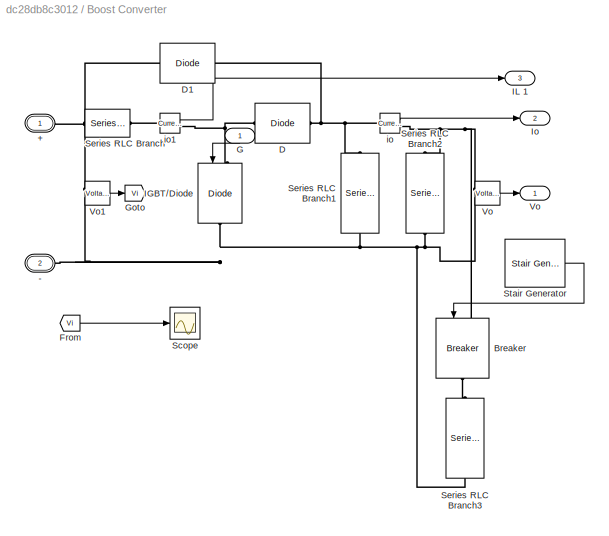
BLOCK [SubSystem] Boost Converter
  Ports = [1, 3, 0, 0, 0, 2]
  RequestExecContextInheritance = off
BLOCK [PMIOPort] Boost Converter/+
  Side = Left
  Tag = PMCPort
BLOCK [PMIOPort] Boost Converter/-
  Port = 2
  Side = Left
  Tag = PMCPort
BLOCK [Reference] Boost Converter/Breaker  REF=spsBreakerLib/Breaker
  NameLocation = left
  Ports = [1, 0, 0, 0, 0, 1, 1]
  SourceBlock = spsBreakerLib/Breaker
  SourceProductBaseCode = PS
  SourceType = Breaker
BLOCK [Reference] Boost Converter/D  REF=spsDiodeLib/Diode
  Ports = [0, 0, 0, 0, 0, 1, 1]
  SourceBlock = spsDiodeLib/Diode
  SourceProductBaseCode = PS
  SourceType = Diode
BLOCK [Reference] Boost Converter/D1  REF=spsDiodeLib/Diode
  Ports = [0, 0, 0, 0, 0, 1, 1]
  SourceBlock = spsDiodeLib/Diode
  SourceProductBaseCode = PS
  SourceType = Diode
BLOCK [From] Boost Converter/From
  GotoTag = Vi
  TagVisibility = global
BLOCK [Inport] Boost Converter/G
  NameLocation = right
BLOCK [Goto] Boost Converter/Goto
  GotoTag = Vi
  TagVisibility = global
BLOCK [Reference] Boost Converter/IGBT//Diode  REF=spsIGBTDiodeLib/IGBT//Diode
  NameLocation = left
  Ports = [1, 0, 0, 0, 0, 1, 1]
  SourceBlock = spsIGBTDiodeLib/IGBT//Diode
  SourceProductBaseCode = PS
  SourceType = IGBT/Diode
BLOCK [Outport] Boost Converter/IL 1
  Port = 3
BLOCK [Outport] Boost Converter/Io 
  Port = 2
BLOCK [Scope] Boost Converter/Scope
  Floating = off
  NumInputPorts = 1
  Ports = [1]
  ScopeSpecificationString = Simulink.scopes.TimeScopeBlockCfg('CurrentConfiguration', extmgr.ConfigurationSet(extmgr.Configuration('Core','General UI',true),extmgr.Configuration('Core','Source UI',true),extmgr.Configuration('Sources','WiredSimulink',true,'DataLoggingVariableName','ScopeData1'),extmgr.Configuration('Visuals','Time Domain',true),extmgr.Configuration('Tools','Plot Navigation',true),extmgr.Configuration('Tools',...<+40ch>
BLOCK [Reference] Boost Converter/Series RLC Branch  REF=spsSeriesRLCBranchLib/Series RLC Branch
  Ports = [0, 0, 0, 0, 0, 1, 1]
  SourceBlock = spsSeriesRLCBranchLib/Series RLC Branch
  SourceProductBaseCode = PS
  SourceType = Series RLC Branch
BLOCK [Reference] Boost Converter/Series RLC Branch1  REF=spsSeriesRLCBranchLib/Series RLC Branch
  NameLocation = left
  Ports = [0, 0, 0, 0, 0, 1, 1]
  SourceBlock = spsSeriesRLCBranchLib/Series RLC Branch
  SourceProductBaseCode = PS
  SourceType = Series RLC Branch
BLOCK [Reference] Boost Converter/Series RLC Branch2  REF=spsSeriesRLCBranchLib/Series RLC Branch
  NameLocation = left
  Ports = [0, 0, 0, 0, 0, 1, 1]
  SourceBlock = spsSeriesRLCBranchLib/Series RLC Branch
  SourceProductBaseCode = PS
  SourceType = Series RLC Branch
BLOCK [Reference] Boost Converter/Series RLC Branch3  REF=spsSeriesRLCBranchLib/Series RLC Branch
  NameLocation = left
  Ports = [0, 0, 0, 0, 0, 1, 1]
  SourceBlock = spsSeriesRLCBranchLib/Series RLC Branch
  SourceProductBaseCode = PS
  SourceType = Series RLC Branch
BLOCK [Reference] Boost Converter/Stair Generator  REF=spsStairGeneratorLib/Stair
Generator
  Ports = [0, 1]
  SourceBlock = spsStairGeneratorLib/Stair\nGenerator
  SourceProductBaseCode = PS
  SourceType = Stair Generator
BLOCK [Reference] Boost Converter/Vo  REF=spsVoltageMeasurementLib/Voltage Measurement
  Ports = [0, 1, 0, 0, 0, 2]
  SourceBlock = spsVoltageMeasurementLib/Voltage Measurement
  SourceProductBaseCode = PS
  SourceType = Voltage Measurement
BLOCK [Outport] Boost Converter/Vo 
BLOCK [Reference] Boost Converter/Vo1  REF=spsVoltageMeasurementLib/Voltage Measurement
  Ports = [0, 1, 0, 0, 0, 2]
  SourceBlock = spsVoltageMeasurementLib/Voltage Measurement
  SourceProductBaseCode = PS
  SourceType = Voltage Measurement
BLOCK [Reference] Boost Converter/io  REF=spsCurrentMeasurementLib/Current Measurement
  Ports = [0, 1, 0, 0, 0, 1, 1]
  SourceBlock = spsCurrentMeasurementLib/Current Measurement
  SourceProductBaseCode = PS
  SourceType = Current Measurement
BLOCK [Reference] Boost Converter/io1  REF=spsCurrentMeasurementLib/Current Measurement
  Ports = [0, 1, 0, 0, 0, 1, 1]
  SourceBlock = spsCurrentMeasurementLib/Current Measurement
  SourceProductBaseCode = PS
  SourceType = Current Measurement
BLOCK [Constant] Constant1
  Value = 200
BLOCK [From] From
BLOCK [From] From1
  GotoTag = IL
BLOCK [From] From2
  GotoTag = G
BLOCK [From] From3
  GotoTag = ILsample
BLOCK [From] From4
  GotoTag = Vo
BLOCK [From] From5
  GotoTag = Vosample
BLOCK [Goto] Goto
  GotoTag = IL
BLOCK [Goto] Goto1
BLOCK [Goto] Goto2
  GotoTag = G
BLOCK [Goto] Goto3
  GotoTag = ILsample
BLOCK [Goto] Goto4
  GotoTag = Vo
BLOCK [Goto] Goto5
  GotoTag = Vosample
BLOCK [Reference] Input Voltage  REF=spsDCVoltageSourceLib/DC Voltage Source
  NameLocation = left
  Ports = [0, 0, 0, 0, 0, 1, 1]
  SourceBlock = spsDCVoltageSourceLib/DC Voltage Source
  SourceProductBaseCode = PS
  SourceType = DC Voltage Source
BLOCK [Reference] Sample and Hold  REF=dspsigops/Sample
and Hold
  Ports = [1, 1, 0, 1]
  SourceBlock = dspsigops/Sample\nand Hold
  SourceProductBaseCode = DS
  SourceType = Sample and Hold
BLOCK [Reference] Sample and Hold1  REF=dspsigops/Sample
and Hold
  Ports = [1, 1, 0, 1]
  SourceBlock = dspsigops/Sample\nand Hold
  SourceProductBaseCode = DS
  SourceType = Sample and Hold
BLOCK [Scope] Scope
  Floating = off
  NumInputPorts = 5
  Ports = [5]
  ScopeSpecificationString = Simulink.scopes.TimeScopeBlockCfg('CurrentConfiguration', extmgr.ConfigurationSet(extmgr.Configuration('Core','General UI',true),extmgr.Configuration('Core','Source UI',true),extmgr.Configuration('Sources','WiredSimulink',true,'DataLoggingVariableName','ScopeData1'),extmgr.Configuration('Visuals','Time Domain',true,'SerializedDisplays',{struct('MinYLimReal','-0.58433','MaxYLimReal','2.13198','YLab...<+2173ch>
BLOCK [Scope] Scope1
  Floating = off
  NumInputPorts = 3
  Ports = [3]
  ScopeSpecificationString = Simulink.scopes.TimeScopeBlockCfg('CurrentConfiguration', extmgr.ConfigurationSet(extmgr.Configuration('Core','General UI',true),extmgr.Configuration('Core','Source UI',true),extmgr.Configuration('Sources','WiredSimulink',true,'DataLoggingVariableName','ScopeData2'),extmgr.Configuration('Visuals','Time Domain',true,'SerializedDisplays',{struct('MinYLimReal','-8.15526','MaxYLimReal','28.41045','YLa...<+1460ch>
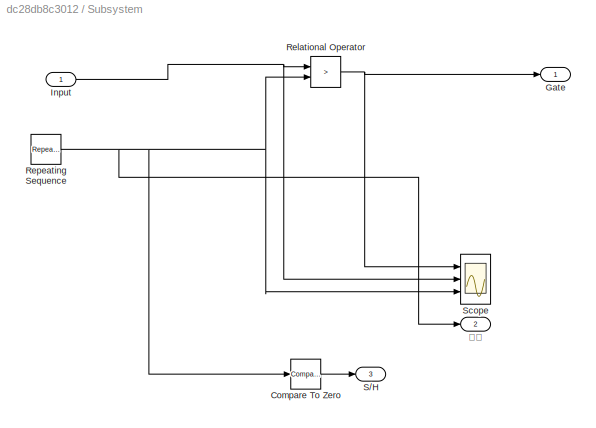
BLOCK [SubSystem] Subsystem
  Ports = [1, 3]
  RequestExecContextInheritance = off
BLOCK [Reference] Subsystem/Compare To Zero  REF=simulink/Logic and Bit
Operations/Compare
To Zero
  Ports = [1, 1]
  SourceBlock = simulink/Logic and Bit\nOperations/Compare\nTo Zero
  SourceProductBaseCode = SL
  SourceType = Compare To Zero
BLOCK [Outport] Subsystem/Gate
BLOCK [Inport] Subsystem/Input
BLOCK [RelationalOperator] Subsystem/Relational Operator
  InputSameDT = off
  Operator = >
  OutDataTypeStr = boolean
  Ports = [2, 1]
  RndMeth = Simplest
BLOCK [Reference] Subsystem/Repeating Sequence  REF=simulink/Sources/Repeating
Sequence
  Ports = [0, 1]
  SourceBlock = simulink/Sources/Repeating\nSequence
  SourceProductBaseCode = SL
  SourceType = Repeating table
BLOCK [Outport] Subsystem/S//H
  Port = 3
BLOCK [Scope] Subsystem/Scope
  Floating = off
  NumInputPorts = 3
  Ports = [3]
  ScopeSpecificationString = Simulink.scopes.TimeScopeBlockCfg('CurrentConfiguration', extmgr.ConfigurationSet(extmgr.Configuration('Core','General UI',true),extmgr.Configuration('Core','Source UI',true),extmgr.Configuration('Sources','WiredSimulink',true,'DataLoggingVariableName','ScopeData1'),extmgr.Configuration('Visuals','Time Domain',true,'SerializedDisplays',{struct('MinYLimReal','-0.125','MaxYLimReal','1.125','YLabelRe...<+2451ch>
BLOCK [Outport] Subsystem/载波
  Port = 2
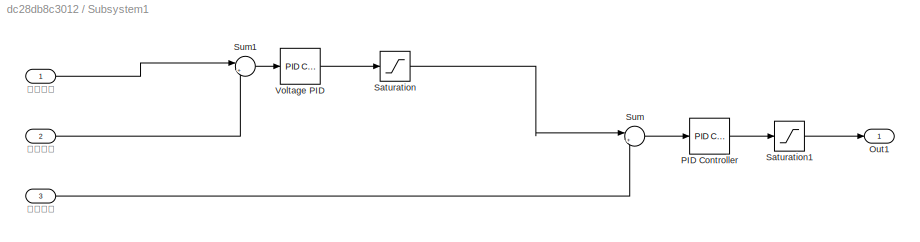
BLOCK [SubSystem] Subsystem1
  Ports = [3, 1]
  RequestExecContextInheritance = off
BLOCK [Reference] Subsystem1/ Voltage PID   REF=pid_lib/PID Controller
  Ports = [1, 1]
  SourceBlock = pid_lib/PID Controller
  SourceProductBaseCode = SL
  SourceType = PID 1dof
BLOCK [Outport] Subsystem1/Out1
BLOCK [Reference] Subsystem1/PID Controller  REF=pid_lib/PID Controller
  Ports = [1, 1]
  SourceBlock = pid_lib/PID Controller
  SourceProductBaseCode = SL
  SourceType = PID 1dof
BLOCK [Saturate] Subsystem1/Saturation
  LowerLimit = 0
  UpperLimit = 20
BLOCK [Saturate] Subsystem1/Saturation1
  LowerLimit = 0
  UpperLimit = 1000
BLOCK [Sum] Subsystem1/Sum
  Inputs = |+-
  Ports = [2, 1]
BLOCK [Sum] Subsystem1/Sum1
  Inputs = |+-
  Ports = [2, 1]
BLOCK [Inport] Subsystem1/电压采样
  Port = 2
BLOCK [Inport] Subsystem1/电流采样
  Port = 3
BLOCK [Inport] Subsystem1/给定电压
BLOCK [Gain] ain
  Gain = 1/1000
BLOCK [Reference] powergui  REF=spspowerguiLib/powergui
  Ports = []
  Priority = 1
  SourceBlock = spspowerguiLib/powergui
  SourceProductBaseCode = PS
  SourceType = PSB option menu block
ANNOTATION (root): Close loop Boost Converter
ANNOTATION (root): HIT ENGINEERS
ANNOTATION (root): Lichuanfeng <email>
ANNOTATION (root): Output Current
LINE Boost Converter/From:1 -> Boost Converter/Scope:1
LINE Boost Converter/G:1 -> Boost Converter/IGBT//Diode:1
LINE Boost Converter/Stair Generator:1 -> Boost Converter/Breaker:1
LINE Boost Converter/Vo1:1 -> Boost Converter/Goto:1
LINE Boost Converter/Vo:1 -> Boost Converter/Vo :1
LINE Boost Converter/io1:1 -> Boost Converter/IL 1:1
LINE Boost Converter/io:1 -> Boost Converter/Io :1
NET Boost Converter:1 -> Goto4:1, Scope1:1
LINE Boost Converter:2 -> Scope1:2
NET Boost Converter:3 -> Goto:1, Scope1:3
LINE Constant1:1 -> Subsystem1:1
NET From1:1 -> Sample and Hold:1, Scope:4
LINE From2:1 -> Boost Converter:1
LINE From3:1 -> Subsystem1:3
LINE From4:1 -> Sample and Hold1:1
LINE From5:1 -> Subsystem1:2
LINE From:1 -> Subsystem:1
LINE Sample and Hold1:1 -> Goto5:1
NET Sample and Hold:1 -> Goto3:1, Scope:3
LINE Subsystem/Compare To Zero:1 -> Subsystem/S//H:1
NET Subsystem/Input:1 -> Subsystem/Relational Operator:1, Subsystem/Scope:2
NET Subsystem/Relational Operator:1 -> Subsystem/Gate:1, Subsystem/Scope:1
NET Subsystem/Repeating Sequence:1 -> Subsystem/Compare To Zero:1, Subsystem/Relational Operator:2, Subsystem/Scope:3, Subsystem/载波:1
LINE Subsystem1/ Voltage PID :1 -> Subsystem1/Saturation:1
LINE Subsystem1/PID Controller:1 -> Subsystem1/Saturation1:1
LINE Subsystem1/Saturation1:1 -> Subsystem1/Out1:1
LINE Subsystem1/Saturation:1 -> Subsystem1/Sum:1
LINE Subsystem1/Sum1:1 -> Subsystem1/ Voltage PID :1
LINE Subsystem1/Sum:1 -> Subsystem1/PID Controller:1
LINE Subsystem1/电压采样:1 -> Subsystem1/Sum1:2
LINE Subsystem1/电流采样:1 -> Subsystem1/Sum:2
LINE Subsystem1/给定电压:1 -> Subsystem1/Sum1:1
LINE Subsystem1:1 -> Goto1:1
NET Subsystem:1 -> Goto2:1, Scope:1
LINE Subsystem:2 -> ain:1
NET Subsystem:3 -> Sample and Hold1:trigger, Sample and Hold:trigger
LINE ain:1 -> Scope:2
PNET net1: Boost Converter/+:RConn1 -- Boost Converter/D1:LConn1 -- Boost Converter/Series RLC Branch:LConn1 -- Boost Converter/Vo1:LConn1
PNET net2: Boost Converter/-:RConn1 -- Boost Converter/IGBT//Diode:RConn1 -- Boost Converter/Series RLC Branch1:RConn1 -- Boost Converter/Series RLC Branch2:RConn1 -- Boost Converter/Series RLC Branch3:RConn1 -- Boost Converter/Vo1:LConn2 -- Boost Converter/Vo:LConn2
PNET net3: Boost Converter/Breaker:LConn1 -- Boost Converter/Series RLC Branch2:LConn1 -- Boost Converter/Vo:LConn1 -- Boost Converter/io:RConn1
PLINE Boost Converter/Breaker:RConn1 -- Boost Converter/Series RLC Branch3:LConn1
PNET net4: Boost Converter/D1:RConn1 -- Boost Converter/D:RConn1 -- Boost Converter/Series RLC Branch1:LConn1 -- Boost Converter/io:LConn1
PNET net5: Boost Converter/D:LConn1 -- Boost Converter/IGBT//Diode:LConn1 -- Boost Converter/io1:RConn1
PLINE Boost Converter/Series RLC Branch:RConn1 -- Boost Converter/io1:LConn1
PLINE Boost Converter:LConn1 -- Input Voltage:RConn1
PLINE Boost Converter:LConn2 -- Input Voltage:LConn1
note: NET lines group one-source signal fan-out (src -> all destinations, sorted); 1:1 wires keep LINE; PNET lines group multi-terminal physical nets as a canonical sorted terminal list (undirected conserving connections); 2-terminal nets keep the pairwise PLINE form
